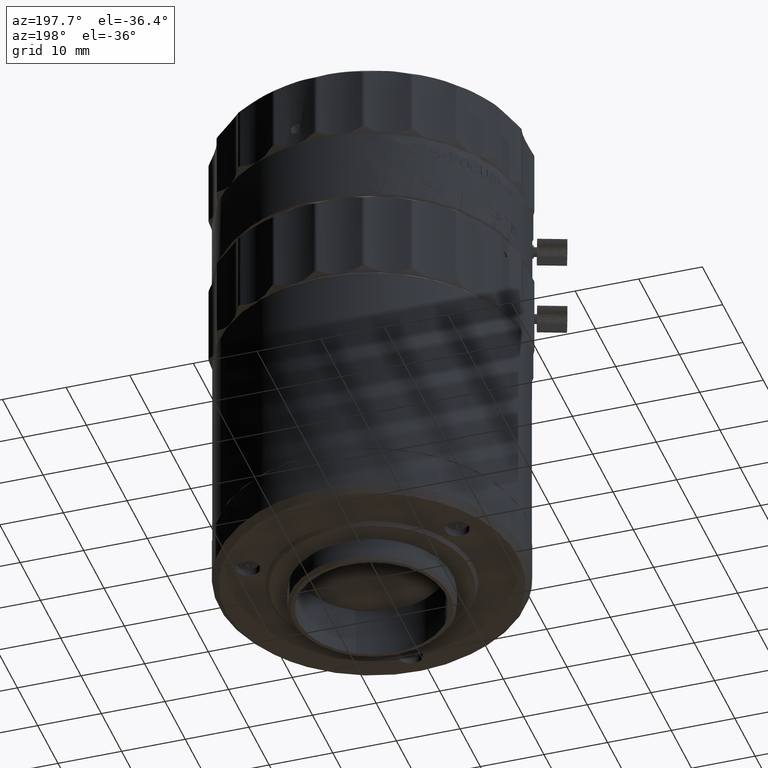
[diagram: clean part render]
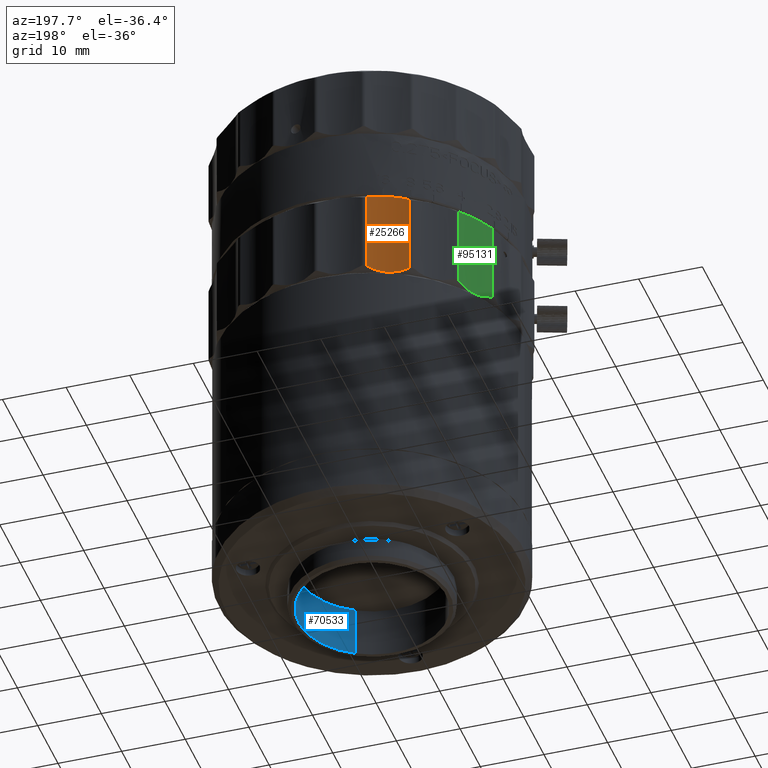
[diagram: same view with three faces highlighted in distinct colors, each labeled with its STEP entity id]
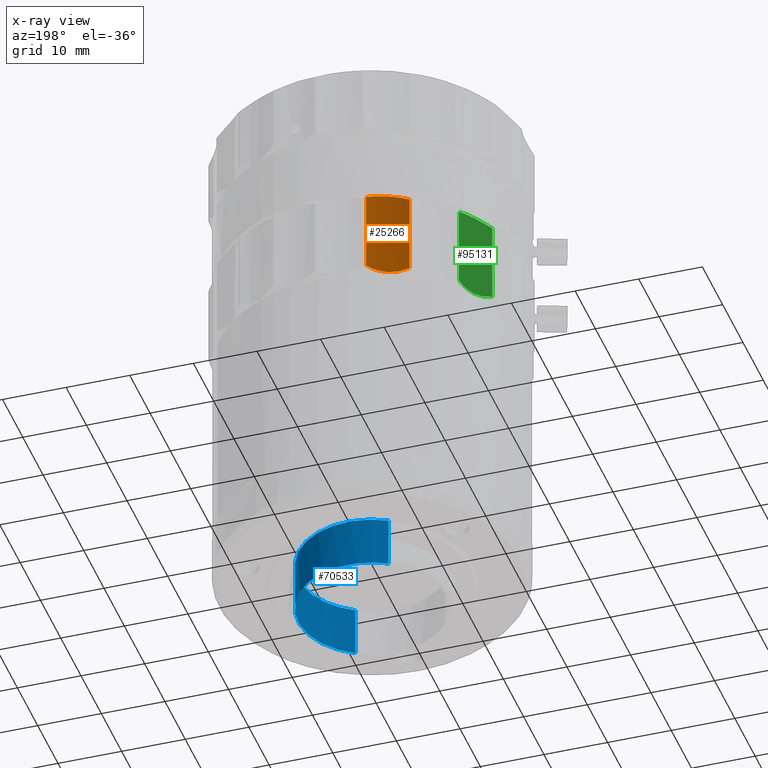
[diagram: x-ray of the same camera — body ghosted, the three highlighted faces saturated]
A machine part, auxiliary view with three faces highlighted in distinct colors.
The next image is the same camera in x-ray (body ghosted, the three faces saturated) — at least one of them is partly hidden behind the body in this view.
Their STEP definitions:

[orange] entity #25266 — the highlighted cylindrical surface (partial cylindrical patch) has radius 12 mm, axis along (0, 0, 1).
#560 = CARTESIAN_POINT ( 'NONE',  ( 13.17818891576174956, 172.1013156007984435, -11.64540692435177505 ) ) ;
#1372 = CARTESIAN_POINT ( 'NONE',  ( 17.00400698369859498, 173.9728846275766898, -25.14582567727874718 ) ) ;
#1636 = CARTESIAN_POINT ( 'NONE',  ( 13.31418547790306128, 172.1410703031915261, -11.61966001739643772 ) ) ;
#4352 = CARTESIAN_POINT ( 'NONE',  ( 11.43430063139486030, 171.7361694488064927, -24.92933738951264999 ) ) ;
#5418 = CARTESIAN_POINT ( 'NONE',  ( 11.43430063136632491, 171.7361694488586465, -20.67644579650948344 ) ) ;
#5564 = ORIENTED_EDGE ( 'NONE', *, *, #70999, .F. ) ;
#8880 = CARTESIAN_POINT ( 'NONE',  ( 15.59966687725185608, 173.0800809461550784, -11.55802111014806854 ) ) ;
#9185 = CARTESIAN_POINT ( 'NONE',  ( 15.96260782777705600, 173.2999878127386069, -25.45459307561570483 ) ) ;
#9339 = AXIS2_PLACEMENT_3D ( 'NONE', #42436, #31849, #59804 ) ;
#9460 = CARTESIAN_POINT ( 'NONE',  ( 14.10208222931592204, 172.4033447435958237, -11.51450186871591441 ) ) ;
#10564 = CARTESIAN_POINT ( 'NONE',  ( 17.21522483922050384, 174.1443186510514067, -12.06242477762982013 ) ) ;
#12728 = CARTESIAN_POINT ( 'NONE',  ( 11.43430063139309816, 171.7361694488064927, -12.17066261047236075 ) ) ;
#12993 = VERTEX_POINT ( 'NONE', #96407 ) ;
#14370 = EDGE_CURVE ( 'NONE', #38640, #32327, #97111, .T. ) ;
#17573 = CARTESIAN_POINT ( 'NONE',  ( 15.59758096266637928, 173.0922647581259639, -25.52385411067212928 ) ) ;
#19260 = CARTESIAN_POINT ( 'NONE',  ( 13.58737315066737672, 172.2138030445144636, -25.54197888984037945 ) ) ;
#22963 = ORIENTED_EDGE ( 'NONE', *, *, #14370, .F. ) ;
#23909 = ORIENTED_EDGE ( 'NONE', *, *, #68855, .F. ) ;
#25266 = ADVANCED_FACE ( 'NONE', ( #25662 ), #108435, .F. ) ;
#25662 = FACE_OUTER_BOUND ( 'NONE', #76044, .T. ) ;
#25991 = CARTESIAN_POINT ( 'NONE',  ( 14.10591310298157630, 172.3943576489226359, -25.59999659146969364 ) ) ;
#26266 = CARTESIAN_POINT ( 'NONE',  ( 15.11212344477725722, 172.8275239267604206, -11.50000340851860869 ) ) ;
#27392 = CARTESIAN_POINT ( 'NONE',  ( 12.50746354068596844, 171.9169176166373347, -11.78863782048622788 ) ) ;
#28217 = CARTESIAN_POINT ( 'NONE',  ( 12.37419351955473878, 171.8990335303524262, -25.25723064088878900 ) ) ;
#31747 = ORIENTED_EDGE ( 'NONE', *, *, #85114, .F. ) ;
#31849 = DIRECTION ( 'NONE',  ( 0.000000000000000000, 0.000000000000000000, 1.000000000000000000 ) ) ;
#32327 = VERTEX_POINT ( 'NONE', #75522 ) ;
#34682 = CARTESIAN_POINT ( 'NONE',  ( 11.97365979973074879, 171.8073565313545998, -11.95417432276481051 ) ) ;
#34958 = CARTESIAN_POINT ( 'NONE',  ( 17.42641806644740399, 174.3157326851325024, -24.92933738951424871 ) ) ;
#38640 = VERTEX_POINT ( 'NONE', #66503 ) ;
#39386 = CARTESIAN_POINT ( 'NONE',  ( 17.42641806641456981, 174.3157326851562630, -20.67644579649419967 ) ) ;
#42436 = CARTESIAN_POINT ( 'NONE',  ( 9.864103222147020844, 183.6329959203999920, -18.55000001599719894 ) ) ;
#43050 = CARTESIAN_POINT ( 'NONE',  ( 16.31773004089393808, 173.5177679930182819, -11.73453547077522252 ) ) ;
#43351 = CARTESIAN_POINT ( 'NONE',  ( 16.55754037901235520, 173.6604464158217240, -25.31136217956144208 ) ) ;
#43620 = CARTESIAN_POINT ( 'NONE',  ( 11.43430063139309816, 171.7361694488064927, -12.17066261047236075 ) ) ;
#44433 = CARTESIAN_POINT ( 'NONE',  ( 11.97227836412968927, 171.8169408924669597, -25.13307826417867474 ) ) ;
#44722 = CARTESIAN_POINT ( 'NONE',  ( 16.99799464111187319, 173.9804754166426903, -11.96692173566308348 ) ) ;
#48324 = CARTESIAN_POINT ( 'NONE',  ( 17.42641806644720148, 174.3157326851320192, -12.17066261046960030 ) ) ;
#52382 = B_SPLINE_CURVE_WITH_KNOTS ( 'NONE', 3,
 ( #12728, #81031, #5418, #4352 ),
 .UNSPECIFIED., .F., .F.,
 ( 4, 4 ),
 ( 0.000000000000000000, 1.000000000000000000 ),
 .UNSPECIFIED. ) ;
#53108 = CARTESIAN_POINT ( 'NONE',  ( 17.42641806644720148, 174.3157326851320192, -12.17066261046960030 ) ) ;
#56703 = CARTESIAN_POINT ( 'NONE',  ( 17.42641806641372426, 174.3157326851556093, -16.42355420349730011 ) ) ;
#59804 = DIRECTION ( 'NONE',  ( 0.1308497841072999990, -0.9914022059684318711, 0.000000000000000000 ) ) ;
#60141 = CARTESIAN_POINT ( 'NONE',  ( 14.86057288092298734, 172.7192276609798682, -25.60000170442165768 ) ) ;
#61827 = CARTESIAN_POINT ( 'NONE',  ( 12.77592328085596485, 171.9930457880614370, -25.36546452912751803 ) ) ;
#66503 = CARTESIAN_POINT ( 'NONE',  ( 17.42641806644740399, 174.3157326851325024, -24.92933738951424871 ) ) ;
#68855 = EDGE_CURVE ( 'NONE', #12993, #101216, #52382, .T. ) ;
#69653 = CARTESIAN_POINT ( 'NONE',  ( 15.47573900533060076, 173.0265478896437799, -25.54198485534715601 ) ) ;
#70229 = CARTESIAN_POINT ( 'NONE',  ( 12.50807454714884948, 171.9287845999323849, -25.29543106876453962 ) ) ;
#70772 = CARTESIAN_POINT ( 'NONE',  ( 11.70396449199215283, 171.7717609147845508, -25.03757522226149490 ) ) ;
#70999 = EDGE_CURVE ( 'NONE', #32327, #12993, #92573, .T. ) ;
#75522 = CARTESIAN_POINT ( 'NONE',  ( 17.42641806644720148, 174.3157326851320192, -12.17066261046960030 ) ) ;
#76044 = EDGE_LOOP ( 'NONE', ( #22963, #31747, #23909, #5564 ) ) ;
#78871 = CARTESIAN_POINT ( 'NONE',  ( 14.35746771002468769, 172.5026445220604785, -11.49999829556668018 ) ) ;
#79370 = CARTESIAN_POINT ( 'NONE',  ( 11.43430063139486030, 171.7361694488064927, -24.92933738951264999 ) ) ;
#81031 = CARTESIAN_POINT ( 'NONE',  ( 11.43430063136726638, 171.7361694488587602, -16.42355420349753103 ) ) ;
#85020 = CARTESIAN_POINT ( 'NONE',  ( 16.66212766585694993, 173.7449581809904373, -11.84276935895262817 ) ) ;
#85114 = EDGE_CURVE ( 'NONE', #101216, #38640, #89191, .T. ) ;
#85866 = CARTESIAN_POINT ( 'NONE',  ( 15.84026039134887220, 173.2285272914107566, -25.48033998258859611 ) ) ;
#87238 = CARTESIAN_POINT ( 'NONE',  ( 16.54850059475127821, 173.6681588034247739, -11.80456893108909000 ) ) ;
#89191 = B_SPLINE_CURVE_WITH_KNOTS ( 'NONE', 3,
 ( #102628, #70772, #44433, #28217, #70229, #61827, #95925, #19260, #25991, #60141, #94243, #69653, #17573, #85866, #9185, #43351, #1372, #34958 ),
 .UNSPECIFIED., .F., .F.,
 ( 4, 2, 2, 2, 2, 2, 2, 2, 4 ),
 ( 0.000000000000000000, 0.1249999999999965306, 0.1874999999999946709, 0.2499999999999927836, 0.4999999999999911182, 0.6249999999999906741, 0.6874999999999904521, 0.7499999999999902300, 1.000000000000000000 ),
 .UNSPECIFIED. ) ;
#92573 = B_SPLINE_CURVE_WITH_KNOTS ( 'NONE', 3,
 ( #53108, #10564, #44722, #85020, #87238, #43050, #95637, #8880, #26266, #78871, #9460, #95085, #103463, #1636, #560, #27392, #34682, #43620 ),
 .UNSPECIFIED., .F., .F.,
 ( 4, 2, 2, 2, 2, 2, 2, 2, 4 ),
 ( 0.000000000000000000, 0.1249999999999996669, 0.1874999999999990286, 0.2499999999999983902, 0.5000000000000001110, 0.6250000000000013323, 0.6875000000000022204, 0.7500000000000032196, 1.000000000000000000 ),
 .UNSPECIFIED. ) ;
#94243 = CARTESIAN_POINT ( 'NONE',  ( 15.10822844386778918, 172.8364834151226148, -25.58549813127202555 ) ) ;
#95085 = CARTESIAN_POINT ( 'NONE',  ( 13.71143395148968658, 172.2670273188394674, -11.55801514463958135 ) ) ;
#95637 = CARTESIAN_POINT ( 'NONE',  ( 16.20207620321726694, 173.4450791801550338, -11.70306110193945415 ) ) ;
#95925 = CARTESIAN_POINT ( 'NONE',  ( 12.90821151326846739, 172.0270942438300494, -25.39693889804946636 ) ) ;
#96407 = CARTESIAN_POINT ( 'NONE',  ( 11.43430063139309816, 171.7361694488064927, -12.17066261047236075 ) ) ;
#97111 = B_SPLINE_CURVE_WITH_KNOTS ( 'NONE', 3,
 ( #98698, #39386, #56703, #48324 ),
 .UNSPECIFIED., .F., .F.,
 ( 4, 4 ),
 ( 0.000000000000000000, 1.000000000000000000 ),
 .UNSPECIFIED. ) ;
#98698 = CARTESIAN_POINT ( 'NONE',  ( 17.42641806644740399, 174.3157326851325024, -24.92933738951424871 ) ) ;
#101216 = VERTEX_POINT ( 'NONE', #79370 ) ;
#102628 = CARTESIAN_POINT ( 'NONE',  ( 11.43430063139486030, 171.7361694488064927, -24.92933738951264999 ) ) ;
#103463 = CARTESIAN_POINT ( 'NONE',  ( 13.57995683170667611, 172.2236921559683935, -11.57614588931411070 ) ) ;
#108435 = CYLINDRICAL_SURFACE ( 'NONE', #9339, 12.00000000002259704 ) ;

[blue] entity #70533 — the highlighted cylindrical surface (partial cylindrical patch) has radius 11.6 mm, axis along (-0, -0, 1).
#1796 = CARTESIAN_POINT ( 'NONE',  ( 27.73765108583839734, 161.8041130760443025, -70.73000000000000398 ) ) ;
#2089 = CARTESIAN_POINT ( 'NONE',  ( 18.19999999548969782, 160.8423420279004858, -62.72999999999999687 ) ) ;
#2641 = CARTESIAN_POINT ( 'NONE',  ( 25.51834883739773119, 162.3218554580940918, -62.72999999999999687 ) ) ;
#2885 = CARTESIAN_POINT ( 'NONE',  ( 26.26695075151875969, 162.1982607818632403, -70.73000000000000398 ) ) ;
#3643 = VECTOR ( 'NONE', #58199, 1000.000000000000000 ) ;
#3747 = CARTESIAN_POINT ( 'NONE',  ( 33.66632029397373316, 144.3388167855905238, -62.72999999999999687 ) ) ;
#9621 = CARTESIAN_POINT ( 'NONE',  ( 30.45946248938687262, 141.1312935084720834, -70.73000000000000398 ) ) ;
#12119 = CARTESIAN_POINT ( 'NONE',  ( 26.26693206686723059, 162.1981910494659758, -62.72999999999999687 ) ) ;
#12675 = CARTESIAN_POINT ( 'NONE',  ( 20.99218867731977767, 162.0255829508211605, -62.72999999999998266 ) ) ;
#13224 = CARTESIAN_POINT ( 'NONE',  ( 34.42657603168026981, 155.9371600926110659, -62.72999999999999687 ) ) ;
#14097 = CARTESIAN_POINT ( 'NONE',  ( 23.99999999549000052, 150.7964473440000006, -66.73000000000000398 ) ) ;
#16429 = VERTEX_POINT ( 'NONE', #56209 ) ;
#16807 = CARTESIAN_POINT ( 'NONE',  ( 29.79999999548997991, 140.7505526601000270, -66.73000000000000398 ) ) ;
#19127 = CARTESIAN_POINT ( 'NONE',  ( 31.66559064219429942, 159.5358672663191726, -70.73000000000000398 ) ) ;
#19431 = CARTESIAN_POINT ( 'NONE',  ( 27.73766977049136173, 161.8041828084441249, -62.72999999999999687 ) ) ;
#19993 = CARTESIAN_POINT ( 'NONE',  ( 31.07592026408720187, 141.5729962592822915, -62.73000000000001108 ) ) ;
#20540 = CARTESIAN_POINT ( 'NONE',  ( 30.45978311236692804, 141.1314786202344180, -62.72999999999999687 ) ) ;
#20796 = CARTESIAN_POINT ( 'NONE',  ( 33.66527584746798851, 157.2557706914734865, -70.73000000000000398 ) ) ;
#20918 = CARTESIAN_POINT ( 'NONE',  ( 29.79999999549179890, 140.7505526601009933, -70.73000000000000398 ) ) ;
#21332 = CARTESIAN_POINT ( 'NONE',  ( 29.81332222052776615, 160.8634243107838415, -70.73000000000000398 ) ) ;
#21650 = CARTESIAN_POINT ( 'NONE',  ( 29.81335415026093827, 160.8634890580979686, -62.72999999999999687 ) ) ;
#25869 = CARTESIAN_POINT ( 'NONE',  ( 34.06697696228686567, 144.9831251190080934, -70.73000000000000398 ) ) ;
#26994 = CARTESIAN_POINT ( 'NONE',  ( 35.52533607187968556, 149.2781032236466103, -70.73000000000000398 ) ) ;
#28383 = CARTESIAN_POINT ( 'NONE',  ( 34.73964339296220771, 155.2460316208612880, -62.72999999999999687 ) ) ;
#28941 = CARTESIAN_POINT ( 'NONE',  ( 21.73111372162220079, 162.1978023344352948, -62.72999999999999687 ) ) ;
#32053 = CARTESIAN_POINT ( 'NONE',  ( 18.19999999549004954, 160.8423420278999743, -70.73000000000000398 ) ) ;
#33512 = EDGE_CURVE ( 'NONE', #109283, #16429, #107948, .T. ) ;
#34275 = CARTESIAN_POINT ( 'NONE',  ( 29.79999999549179890, 140.7505526601009933, -70.73000000000000398 ) ) ;
#35395 = CARTESIAN_POINT ( 'NONE',  ( 32.73941991782882610, 143.1308566973146128, -70.73000000000000398 ) ) ;
#35964 = CARTESIAN_POINT ( 'NONE',  ( 33.22327471419296074, 157.8724592154302968, -70.73000000000000398 ) ) ;
#36807 = CARTESIAN_POINT ( 'NONE',  ( 35.22913560230620789, 153.8042586621739929, -62.72999999999999687 ) ) ;
#37049 = CARTESIAN_POINT ( 'NONE',  ( 21.73110429872801319, 162.1978739090984334, -70.73000000000000398 ) ) ;
#37914 = CARTESIAN_POINT ( 'NONE',  ( 23.24067860985180545, 162.3966131374412498, -62.72999999999999687 ) ) ;
#38167 = CARTESIAN_POINT ( 'NONE',  ( 19.55021717993081154, 161.5360995941568945, -70.73000000000001819 ) ) ;
#38455 = CARTESIAN_POINT ( 'NONE',  ( 34.74040588500106708, 146.3487038857646780, -62.72999999999999687 ) ) ;
#42644 = CARTESIAN_POINT ( 'NONE',  ( 32.22081103444010353, 142.5770385292580897, -70.73000000000000398 ) ) ;
#43212 = CARTESIAN_POINT ( 'NONE',  ( 35.40181343334773345, 148.5294965879505185, -70.73000000000001819 ) ) ;
#44199 = B_SPLINE_CURVE_WITH_KNOTS ( 'NONE', 3,
 ( #34275, #9621, #85173, #42644, #35395, #102506, #25869, #103621, #60012, #43212, #26994, #55480, #63359, #63897, #54919, #46543, #97461, #20796, #35964, #45993, #19127, #87966, #21332, #79575, #1796, #2885, #70093, #89053, #80108, #37049, #105815, #38167, #45448, #104179 ),
 .UNSPECIFIED., .F., .F.,
 ( 4, 2, 2, 2, 2, 2, 2, 2, 2, 2, 2, 2, 2, 2, 2, 2, 4 ),
 ( 0.000000000000000000, 0.06250000000000000000, 0.1250000000000000000, 0.1875000000000000000, 0.2500000000000000000, 0.3125000000000000000, 0.3750000000000000000, 0.4375000000000000000, 0.5000000000000000000, 0.5625000000000000000, 0.6250000000000000000, 0.6875000000000000000, 0.7500000000000000000, 0.8125000000000000000, 0.8750000000000000000, 0.9375000000000000000, 1.000000000000000000 ),
 .UNSPECIFIED. ) ;
#45448 = CARTESIAN_POINT ( 'NONE',  ( 18.85978311243641059, 161.2232679880757473, -70.73000000000000398 ) ) ;
#45993 = CARTESIAN_POINT ( 'NONE',  ( 32.21940881029784265, 159.0172583828941413, -70.73000000000000398 ) ) ;
#46293 = CARTESIAN_POINT ( 'NONE',  ( 35.40174370097319212, 148.5295152726812375, -62.72999999999999687 ) ) ;
#46543 = CARTESIAN_POINT ( 'NONE',  ( 34.73971175400302513, 155.2460548262558859, -70.73000000000001819 ) ) ;
#46854 = CARTESIAN_POINT ( 'NONE',  ( 28.44774345380047365, 161.5368532334636313, -62.72999999999999687 ) ) ;
#50722 = ORIENTED_EDGE ( 'NONE', *, *, #90459, .F. ) ;
#51789 = EDGE_LOOP ( 'NONE', ( #87799, #50722, #105631, #69755 ) ) ;
#54664 = CARTESIAN_POINT ( 'NONE',  ( 30.45763055391670093, 160.4627676424610172, -62.72999999999999687 ) ) ;
#54919 = CARTESIAN_POINT ( 'NONE',  ( 35.22906724126283962, 153.8042354567816972, -70.73000000000000398 ) ) ;
#55480 = CARTESIAN_POINT ( 'NONE',  ( 35.62499093823707597, 150.7974388662192951, -70.73000000000001819 ) ) ;
#55783 = CARTESIAN_POINT ( 'NONE',  ( 33.66521332710033221, 157.2557345953912886, -62.72999999999999687 ) ) ;
#56209 = CARTESIAN_POINT ( 'NONE',  ( 18.19999999548969782, 160.8423420279004858, -62.72999999999999687 ) ) ;
#58139 = VERTEX_POINT ( 'NONE', #20918 ) ;
#58199 = DIRECTION ( 'NONE',  ( -2.218858040988795124E-16, -1.281058287258381881E-16, 1.000000000000000000 ) ) ;
#58801 = DIRECTION ( 'NONE',  ( -2.218858040988795124E-16, -1.281058287258381881E-16, 1.000000000000000000 ) ) ;
#60012 = CARTESIAN_POINT ( 'NONE',  ( 35.00766572754093175, 147.0587962536764337, -70.73000000000000398 ) ) ;
#60075 = B_SPLINE_CURVE_WITH_KNOTS ( 'NONE', 3,
 ( #2089, #61995, #88801, #12675, #28941, #37914, #105004, #2641, #12119, #19431, #46854, #21650, #54664, #80976, #70932, #105560, #55783, #13224, #28383, #36807, #70392, #78770, #62547, #63102, #46293, #97745, #38455, #96650, #3747, #72050, #104464, #19993, #20540, #106112 ),
 .UNSPECIFIED., .F., .F.,
 ( 4, 2, 2, 2, 2, 2, 2, 2, 2, 2, 2, 2, 2, 2, 2, 2, 4 ),
 ( 0.000000000000000000, 0.06250000000000000000, 0.1250000000000000000, 0.1875000000000000000, 0.2500000000000000000, 0.3125000000000000000, 0.3750000000000000000, 0.4375000000000000000, 0.5000000000000000000, 0.5625000000000000000, 0.6250000000000000000, 0.6875000000000000000, 0.7500000000000000000, 0.8125000000000000000, 0.8750000000000000000, 0.9375000000000000000, 1.000000000000000000 ),
 .UNSPECIFIED. ) ;
#61995 = CARTESIAN_POINT ( 'NONE',  ( 18.85946248937373682, 161.2230828762663464, -62.72999999999998266 ) ) ;
#62547 = CARTESIAN_POINT ( 'NONE',  ( 35.62491890054336352, 150.7974435878102213, -62.72999999999999687 ) ) ;
#62654 = VECTOR ( 'NONE', #58801, 1000.000000000000000 ) ;
#63102 = CARTESIAN_POINT ( 'NONE',  ( 35.52540810957475514, 149.2780985020514493, -62.72999999999999687 ) ) ;
#63359 = CARTESIAN_POINT ( 'NONE',  ( 35.60009421428224385, 151.5557593066663458, -70.73000000000000398 ) ) ;
#63897 = CARTESIAN_POINT ( 'NONE',  ( 35.40142656057033577, 153.0653430408436577, -70.73000000000001819 ) ) ;
#65103 = EDGE_CURVE ( 'NONE', #16429, #83055, #60075, .T. ) ;
#67152 = CARTESIAN_POINT ( 'NONE',  ( 18.19999999549002112, 160.8423420278999458, -66.73000000000000398 ) ) ;
#69755 = ORIENTED_EDGE ( 'NONE', *, *, #65103, .F. ) ;
#70093 = CARTESIAN_POINT ( 'NONE',  ( 25.51834411583128315, 162.3217834203948087, -70.73000000000000398 ) ) ;
#70392 = CARTESIAN_POINT ( 'NONE',  ( 35.40135498591902774, 153.0653336178809809, -62.72999999999999687 ) ) ;
#70533 = ADVANCED_FACE ( 'NONE', ( #82400 ), #90783, .F. ) ;
#70932 = CARTESIAN_POINT ( 'NONE',  ( 32.21935453322562637, 159.0172107832911763, -62.72999999999999687 ) ) ;
#72050 = CARTESIAN_POINT ( 'NONE',  ( 32.73947719176587867, 143.1308127494064593, -62.72999999999999687 ) ) ;
#72930 = DIRECTION ( 'NONE',  ( -2.218858040988795124E-16, -1.281058287258381881E-16, 1.000000000000000000 ) ) ;
#73279 = EDGE_CURVE ( 'NONE', #58139, #83055, #107474, .T. ) ;
#78770 = CARTESIAN_POINT ( 'NONE',  ( 35.60016578893556272, 151.5557687296257541, -62.72999999999999687 ) ) ;
#79575 = CARTESIAN_POINT ( 'NONE',  ( 28.44777538353151769, 161.5369179807761668, -70.73000000000000398 ) ) ;
#80108 = CARTESIAN_POINT ( 'NONE',  ( 23.24068803274616002, 162.3965415627746154, -70.73000000000000398 ) ) ;
#80976 = CARTESIAN_POINT ( 'NONE',  ( 31.66563459006649950, 159.5359245402986517, -62.72999999999999687 ) ) ;
#82400 = FACE_OUTER_BOUND ( 'NONE', #51789, .T. ) ;
#83055 = VERTEX_POINT ( 'NONE', #96382 ) ;
#85173 = CARTESIAN_POINT ( 'NONE',  ( 31.07601186686754602, 141.5731726252338945, -70.73000000000000398 ) ) ;
#87352 = AXIS2_PLACEMENT_3D ( 'NONE', #14097, #72930, #99182 ) ;
#87799 = ORIENTED_EDGE ( 'NONE', *, *, #33512, .F. ) ;
#87966 = CARTESIAN_POINT ( 'NONE',  ( 30.45767450178641056, 160.4628249164397857, -70.73000000000000398 ) ) ;
#88801 = CARTESIAN_POINT ( 'NONE',  ( 19.55041571862552274, 161.5360907414694509, -62.72999999999999687 ) ) ;
#89053 = CARTESIAN_POINT ( 'NONE',  ( 23.99900847328702014, 162.4214382867416759, -70.73000000000000398 ) ) ;
#90459 = EDGE_CURVE ( 'NONE', #58139, #109283, #44199, .T. ) ;
#90783 = CYLINDRICAL_SURFACE ( 'NONE', #87352, 11.60000000000040110 ) ;
#96382 = CARTESIAN_POINT ( 'NONE',  ( 29.79999999549069756, 140.7505526600997712, -62.72999999999999687 ) ) ;
#96650 = CARTESIAN_POINT ( 'NONE',  ( 34.06704170954012056, 144.9830931891544878, -62.72999999999999687 ) ) ;
#97461 = CARTESIAN_POINT ( 'NONE',  ( 34.42651351130983528, 155.9371239965300902, -70.73000000000000398 ) ) ;
#97745 = CARTESIAN_POINT ( 'NONE',  ( 35.00773545991591362, 147.0587775689407977, -62.72999999999999687 ) ) ;
#99182 = DIRECTION ( 'NONE',  ( 0.4999999999999808487, -0.8660254037844498098, 0.000000000000000000 ) ) ;
#102506 = CARTESIAN_POINT ( 'NONE',  ( 33.66637756791264025, 144.3387728376880261, -70.73000000000001819 ) ) ;
#103621 = CARTESIAN_POINT ( 'NONE',  ( 34.74047063225501830, 146.3486719559163873, -70.73000000000001819 ) ) ;
#104179 = CARTESIAN_POINT ( 'NONE',  ( 18.19999999549004954, 160.8423420278999743, -70.73000000000000398 ) ) ;
#104464 = CARTESIAN_POINT ( 'NONE',  ( 32.22090263721739944, 142.5772148952040936, -62.72999999999999687 ) ) ;
#105004 = CARTESIAN_POINT ( 'NONE',  ( 23.99900375172126132, 162.4213662490453487, -62.72999999999999687 ) ) ;
#105560 = CARTESIAN_POINT ( 'NONE',  ( 33.22332899126797656, 157.8725068150331481, -62.72999999999999687 ) ) ;
#105631 = ORIENTED_EDGE ( 'NONE', *, *, #73279, .T. ) ;
#105815 = CARTESIAN_POINT ( 'NONE',  ( 20.99238721601560798, 162.0255740981302779, -70.73000000000000398 ) ) ;
#106112 = CARTESIAN_POINT ( 'NONE',  ( 29.79999999549069756, 140.7505526600997712, -62.72999999999999687 ) ) ;
#107474 = LINE ( 'NONE', #16807, #62654 ) ;
#107948 = LINE ( 'NONE', #67152, #3643 ) ;
#109283 = VERTEX_POINT ( 'NONE', #32053 ) ;

[green] entity #95131 — the highlighted cylindrical surface (partial cylindrical patch) has radius 12 mm, axis along (0, 0, 1).
#1617 = CARTESIAN_POINT ( 'NONE',  ( 4.798624397987363288, 165.1168982684893365, -11.70306110188482229 ) ) ;
#1747 = CYLINDRICAL_SURFACE ( 'NONE', #92742, 12.00000000005070078 ) ;
#2714 = CARTESIAN_POINT ( 'NONE',  ( 5.009808898683030698, 165.6238261438496693, -11.84276935907737638 ) ) ;
#4060 = B_SPLINE_CURVE_WITH_KNOTS ( 'NONE', 3,
 ( #23862, #40099, #58003, #92106 ),
 .UNSPECIFIED., .F., .F.,
 ( 4, 4 ),
 ( 0.000000000000000000, 1.000000000000000000 ),
 .UNSPECIFIED. ) ;
#6310 = EDGE_CURVE ( 'NONE', #47482, #36181, #4060, .T. ) ;
#10894 = CARTESIAN_POINT ( 'NONE',  ( 4.971001999333698684, 165.4950831295869307, -25.31136217964295909 ) ) ;
#11654 = CARTESIAN_POINT ( 'NONE',  ( 3.147111461532310805, 162.4126688019557321, -11.61966001730366038 ) ) ;
#16209 = CARTESIAN_POINT ( 'NONE',  ( 1.821966482604779225, 161.0191471749299410, -16.42355420349806394 ) ) ;
#17044 = CARTESIAN_POINT ( 'NONE',  ( 5.163887307961654294, 166.0047352883938743, -25.14582567735956786 ) ) ;
#17824 = CARTESIAN_POINT ( 'NONE',  ( 3.805429684375623456, 163.2991172489911094, -11.49999829546062813 ) ) ;
#18188 = CARTESIAN_POINT ( 'NONE',  ( 2.785763541629177720, 161.9871513154247396, -25.36546452909425042 ) ) ;
#18742 = CARTESIAN_POINT ( 'NONE',  ( 5.241831466081194435, 166.2653639808561365, -12.06242477771284349 ) ) ;
#18749 = CARTESIAN_POINT ( 'NONE',  ( 4.434263512847864241, 164.3619311757726393, -25.54198485533676077 ) ) ;
#19295 = CARTESIAN_POINT ( 'NONE',  ( 3.331857896993181800, 162.6266555081407148, -25.54197888986545806 ) ) ;
#19511 = CARTESIAN_POINT ( 'NONE',  ( 2.606836221188011837, 161.7730225121759133, -11.78863782037449504 ) ) ;
#19635 = EDGE_CURVE ( 'NONE', #36181, #35957, #19771, .T. ) ;
#19645 = CARTESIAN_POINT ( 'NONE',  ( -6.177112479063100459, 169.9642428013999904, -18.55000001599709947 ) ) ;
#19771 = B_SPLINE_CURVE_WITH_KNOTS ( 'NONE', 3,
 ( #95406, #18742, #95954, #2714, #68795, #96167, #1617, #52528, #45813, #17824, #53646, #71007, #86671, #11654, #36341, #19511, #61525, #96735 ),
 .UNSPECIFIED., .F., .F.,
 ( 4, 2, 2, 2, 2, 2, 2, 2, 4 ),
 ( 0.000000000000000000, 0.1250000000000037470, 0.1875000000000057454, 0.2500000000000077161, 0.5000000000000052180, 0.6250000000000039968, 0.6875000000000033307, 0.7500000000000025535, 1.000000000000000000 ),
 .UNSPECIFIED. ) ;
#20994 = CARTESIAN_POINT ( 'NONE',  ( 5.319766535621829995, 166.5259622830919852, -24.92933738952839917 ) ) ;
#23862 = CARTESIAN_POINT ( 'NONE',  ( 5.319766535621829995, 166.5259622830919852, -24.92933738952839917 ) ) ;
#25474 = CARTESIAN_POINT ( 'NONE',  ( 2.600656148376045529, 161.7831716658500625, -25.29543106870972125 ) ) ;
#26322 = B_SPLINE_CURVE_WITH_KNOTS ( 'NONE', 3,
 ( #36131, #103783, #60741, #94853, #25474, #18188, #70263, #19295, #53419, #27168, #51188, #18749, #52877, #87004, #87567, #10894, #17044, #85330 ),
 .UNSPECIFIED., .F., .F.,
 ( 4, 2, 2, 2, 2, 2, 2, 2, 4 ),
 ( 0.000000000000000000, 0.1250000000000034139, 0.1875000000000051070, 0.2500000000000068279, 0.5000000000000046629, 0.6249999999999982236, 0.6875000000000003331, 0.7500000000000024425, 1.000000000000000000 ),
 .UNSPECIFIED. ) ;
#26947 = FACE_OUTER_BOUND ( 'NONE', #94029, .T. ) ;
#27168 = CARTESIAN_POINT ( 'NONE',  ( 4.099109057290609037, 163.7614758698132675, -25.60000170441658796 ) ) ;
#31922 = CARTESIAN_POINT ( 'NONE',  ( 1.821966482593709857, 161.0191471749335221, -12.17066261043716224 ) ) ;
#33949 = VERTEX_POINT ( 'NONE', #79159 ) ;
#34227 = CARTESIAN_POINT ( 'NONE',  ( 5.319766535621719861, 166.5259622830919852, -12.17066261045555997 ) ) ;
#34595 = EDGE_CURVE ( 'NONE', #35957, #33949, #54231, .T. ) ;
#35957 = VERTEX_POINT ( 'NONE', #62336 ) ;
#36131 = CARTESIAN_POINT ( 'NONE',  ( 1.821966482595079873, 161.0191471749345169, -24.92933738954794975 ) ) ;
#36181 = VERTEX_POINT ( 'NONE', #34227 ) ;
#36341 = CARTESIAN_POINT ( 'NONE',  ( 3.057140449585573627, 162.3032123336253960, -11.64540692437472202 ) ) ;
#37254 = ORIENTED_EDGE ( 'NONE', *, *, #34595, .F. ) ;
#40099 = CARTESIAN_POINT ( 'NONE',  ( 5.319766535603553947, 166.5259622830803892, -20.67644579649363834 ) ) ;
#41526 = ORIENTED_EDGE ( 'NONE', *, *, #19635, .F. ) ;
#43112 = EDGE_CURVE ( 'NONE', #33949, #47482, #26322, .T. ) ;
#45813 = CARTESIAN_POINT ( 'NONE',  ( 4.245944427327784432, 163.9926579210618343, -11.50000340871596016 ) ) ;
#47482 = VERTEX_POINT ( 'NONE', #20994 ) ;
#51188 = CARTESIAN_POINT ( 'NONE',  ( 4.237679167820220805, 163.9978664664791950, -25.58549813126182570 ) ) ;
#52528 = CARTESIAN_POINT ( 'NONE',  ( 4.506501282063932301, 164.4759733200710059, -11.55802111034571134 ) ) ;
#52877 = CARTESIAN_POINT ( 'NONE',  ( 4.497914432172419374, 164.4848650191253228, -25.52385411066292775 ) ) ;
#53216 = DIRECTION ( 'NONE',  ( 0.000000000000000000, 0.000000000000000000, 1.000000000000000000 ) ) ;
#53419 = CARTESIAN_POINT ( 'NONE',  ( 3.658585681498243591, 163.0679406794180295, -25.59999659149503870 ) ) ;
#53646 = CARTESIAN_POINT ( 'NONE',  ( 3.650357854977894778, 163.0732081581667785, -11.51450186855936941 ) ) ;
#54231 = B_SPLINE_CURVE_WITH_KNOTS ( 'NONE', 3,
 ( #31922, #16209, #101812, #100722 ),
 .UNSPECIFIED., .F., .F.,
 ( 4, 4 ),
 ( 0.000000000000000000, 1.000000000000000000 ),
 .UNSPECIFIED. ) ;
#58003 = CARTESIAN_POINT ( 'NONE',  ( 5.319766535603243085, 166.5259622830793376, -16.42355420349806394 ) ) ;
#60741 = CARTESIAN_POINT ( 'NONE',  ( 2.220964370609065153, 161.3889373211370071, -25.13307826411782386 ) ) ;
#61525 = CARTESIAN_POINT ( 'NONE',  ( 2.227504829448818224, 161.3817965410263184, -11.95417432265375979 ) ) ;
#62336 = CARTESIAN_POINT ( 'NONE',  ( 1.821966482593709857, 161.0191471749335221, -12.17066261043716224 ) ) ;
#68795 = CARTESIAN_POINT ( 'NONE',  ( 4.959188436544380352, 165.4963631119425997, -11.80456893120298467 ) ) ;
#70263 = CARTESIAN_POINT ( 'NONE',  ( 2.875885030635707551, 162.0898040846357162, -25.39693889804846805 ) ) ;
#71007 = CARTESIAN_POINT ( 'NONE',  ( 3.404379440334608375, 162.7405174056815156, -11.55801514448327261 ) ) ;
#71269 = ORIENTED_EDGE ( 'NONE', *, *, #43112, .F. ) ;
#73470 = ORIENTED_EDGE ( 'NONE', *, *, #6310, .F. ) ;
#79159 = CARTESIAN_POINT ( 'NONE',  ( 1.821966482595079873, 161.0191471749345169, -24.92933738954794975 ) ) ;
#85330 = CARTESIAN_POINT ( 'NONE',  ( 5.319766535621829995, 166.5259622830919852, -24.92933738952839917 ) ) ;
#86671 = CARTESIAN_POINT ( 'NONE',  ( 3.320159512445362449, 162.6306485150198284, -11.57614588917053489 ) ) ;
#87004 = CARTESIAN_POINT ( 'NONE',  ( 4.621666167735241082, 164.7341565974864750, -25.48033998258427957 ) ) ;
#87350 = DIRECTION ( 'NONE',  ( 0.6665899134696420258, -0.7454246355336904273, 0.000000000000000000 ) ) ;
#87567 = CARTESIAN_POINT ( 'NONE',  ( 4.682499218669940788, 164.8621208161104050, -25.45459307560071593 ) ) ;
#92106 = CARTESIAN_POINT ( 'NONE',  ( 5.319766535621719861, 166.5259622830919852, -12.17066261045555997 ) ) ;
#92742 = AXIS2_PLACEMENT_3D ( 'NONE', #19645, #53216, #87350 ) ;
#94029 = EDGE_LOOP ( 'NONE', ( #73470, #71269, #37254, #41526 ) ) ;
#94853 = CARTESIAN_POINT ( 'NONE',  ( 2.506797826465740453, 161.6831723103381648, -25.25723064082847458 ) ) ;
#95131 = ADVANCED_FACE ( 'NONE', ( #26947 ), #1747, .F. ) ;
#95406 = CARTESIAN_POINT ( 'NONE',  ( 5.319766535621719861, 166.5259622830919852, -12.17066261045555997 ) ) ;
#95954 = CARTESIAN_POINT ( 'NONE',  ( 5.154643633794512070, 166.0076202199686008, -11.96692173578839302 ) ) ;
#96167 = CARTESIAN_POINT ( 'NONE',  ( 4.853235016999453144, 165.2421067111821742, -11.73453547084607429 ) ) ;
#96735 = CARTESIAN_POINT ( 'NONE',  ( 1.821966482593709857, 161.0191471749335221, -12.17066261043716224 ) ) ;
#100722 = CARTESIAN_POINT ( 'NONE',  ( 1.821966482595079873, 161.0191471749345169, -24.92933738954794975 ) ) ;
#101812 = CARTESIAN_POINT ( 'NONE',  ( 1.821966482603978532, 161.0191471749292020, -20.67644579650930936 ) ) ;
#103783 = CARTESIAN_POINT ( 'NONE',  ( 2.024723833454474153, 161.2004612857526809, -25.03757522222149845 ) ) ;